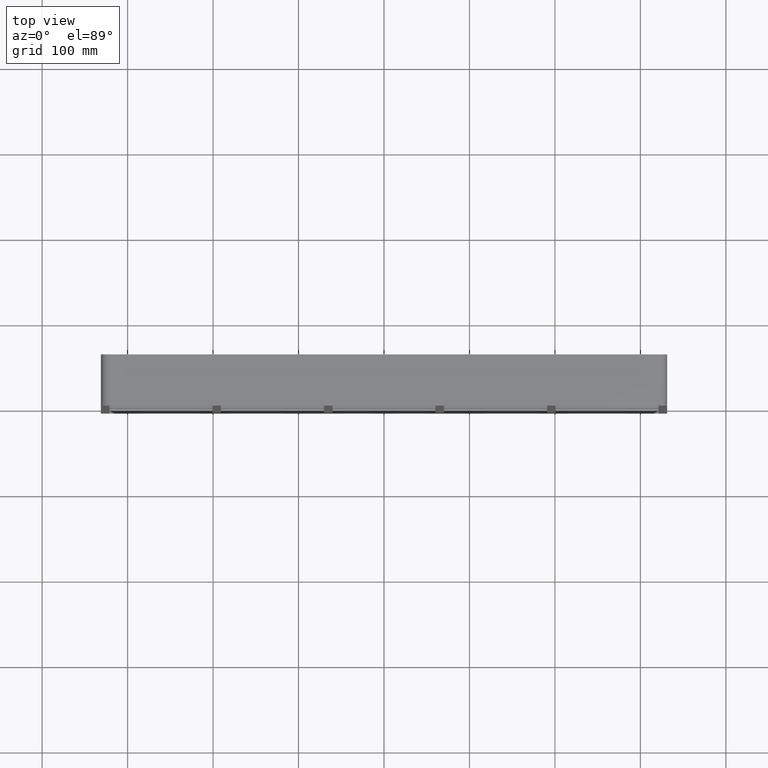
[diagram: clean part render]
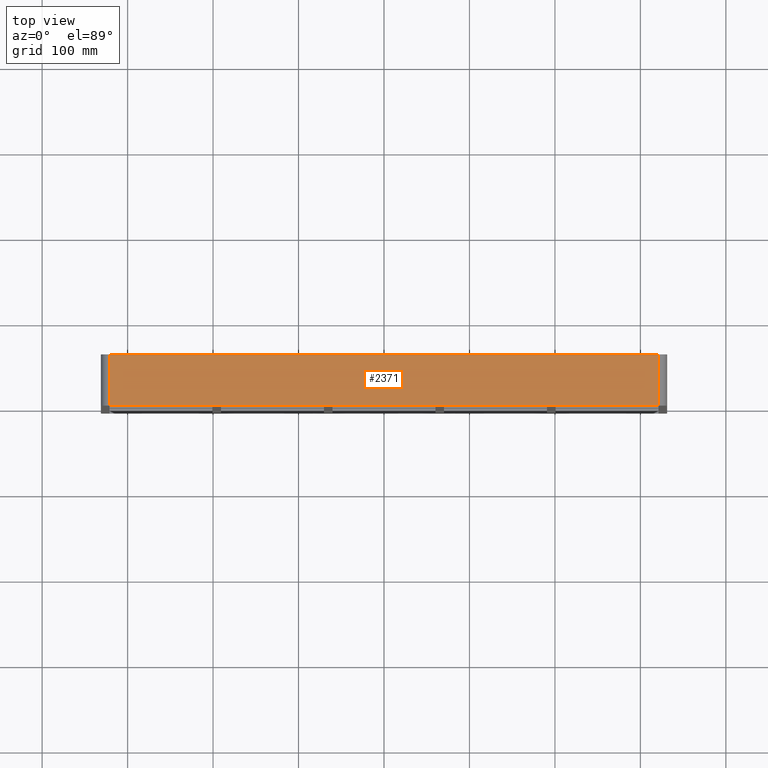
[diagram: same view with one face highlighted and labeled with its STEP entity id]
A machine part, top view. The second image highlights one B-rep face of the part: STEP entity #2371.
In plain terms, the highlighted planar face has unit normal (0, 0, 1).
Its self-contained STEP definition (entity closure, byte-faithful):
#881=CARTESIAN_POINT('',(-321.25,57.0,269.25));
#882=VERTEX_POINT('',#881);
#890=CARTESIAN_POINT('',(321.25,57.0,269.25));
#891=VERTEX_POINT('',#890);
#892=CARTESIAN_POINT('',(-321.25,57.0,269.25));
#893=DIRECTION('',(1.0,0.0,0.0));
#894=VECTOR('',#893,642.5);
#895=LINE('',#892,#894);
#896=EDGE_CURVE('',#882,#891,#895,.T.);
#1688=CARTESIAN_POINT('',(321.25,-3.0,269.25));
#1689=VERTEX_POINT('',#1688);
#1697=CARTESIAN_POINT('',(-321.25,-3.0,269.25));
#1698=VERTEX_POINT('',#1697);
#1699=CARTESIAN_POINT('',(321.25,-3.0,269.25));
#1700=DIRECTION('',(-1.0,0.0,0.0));
#1701=VECTOR('',#1700,642.5);
#1702=LINE('',#1699,#1701);
#1703=EDGE_CURVE('',#1689,#1698,#1702,.T.);
#2295=CARTESIAN_POINT('',(321.25,57.0,269.25));
#2296=DIRECTION('',(0.0,-1.0,0.0));
#2297=VECTOR('',#2296,60.0);
#2298=LINE('',#2295,#2297);
#2299=EDGE_CURVE('',#891,#1689,#2298,.T.);
#2351=CARTESIAN_POINT('',(-321.25,-3.0,269.25));
#2352=DIRECTION('',(0.0,1.0,0.0));
#2353=VECTOR('',#2352,60.0);
#2354=LINE('',#2351,#2353);
#2355=EDGE_CURVE('',#1698,#882,#2354,.T.);
#2360=CARTESIAN_POINT('',(-331.25,0.0,269.25));
#2361=DIRECTION('',(0.0,0.0,1.0));
#2362=DIRECTION('',(1.0,0.0,0.0));
#2363=AXIS2_PLACEMENT_3D('',#2360,#2361,#2362);
#2364=PLANE('',#2363);
#2365=ORIENTED_EDGE('',*,*,#2299,.F.);
#2366=ORIENTED_EDGE('',*,*,#896,.F.);
#2367=ORIENTED_EDGE('',*,*,#2355,.F.);
#2368=ORIENTED_EDGE('',*,*,#1703,.F.);
#2369=EDGE_LOOP('',(#2365,#2366,#2367,#2368));
#2370=FACE_OUTER_BOUND('',#2369,.T.);
#2371=ADVANCED_FACE('',(#2370),#2364,.T.);